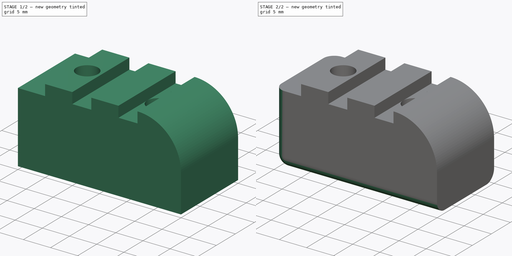
[diagram: build sequence overview — one tinted view per stage of 2, left to right]
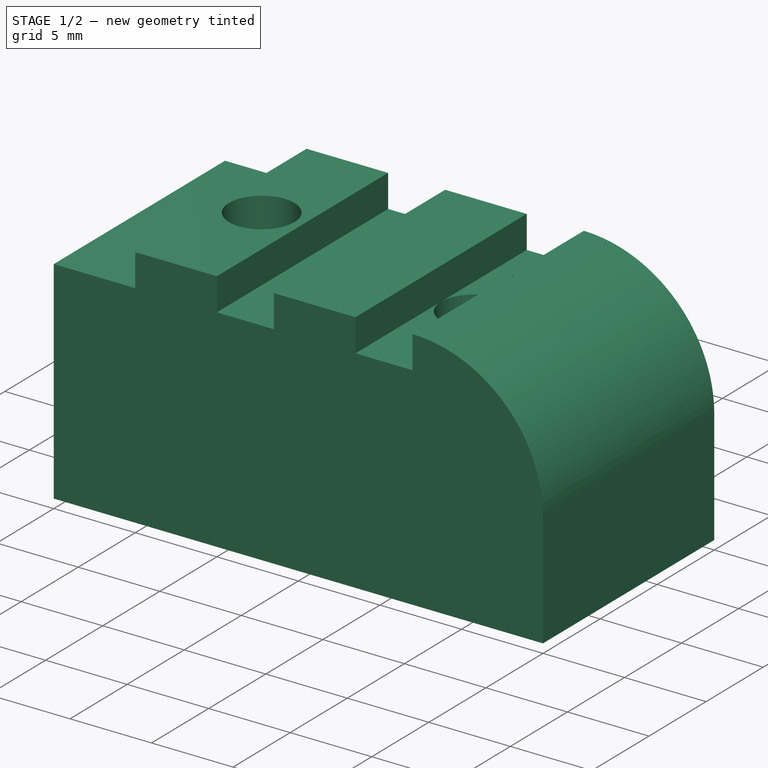
[diagram: stage 1 of 2 — iso view after this stage's code; geometry added in this stage tinted green]
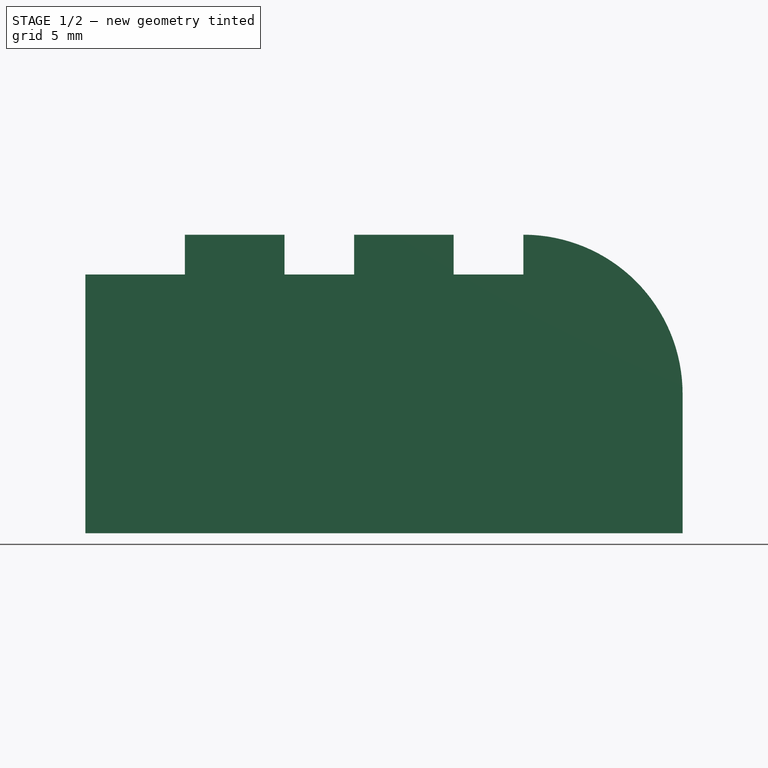
[diagram: stage 1 of 2 — front view after this stage's code; geometry added in this stage tinted green]
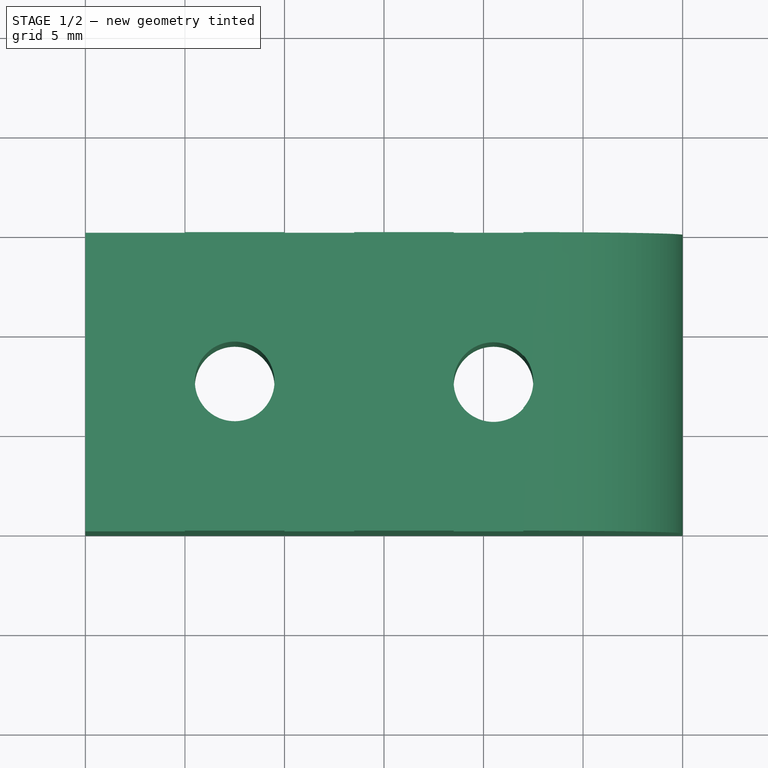
[diagram: stage 1 of 2 — top view after this stage's code; geometry added in this stage tinted green]
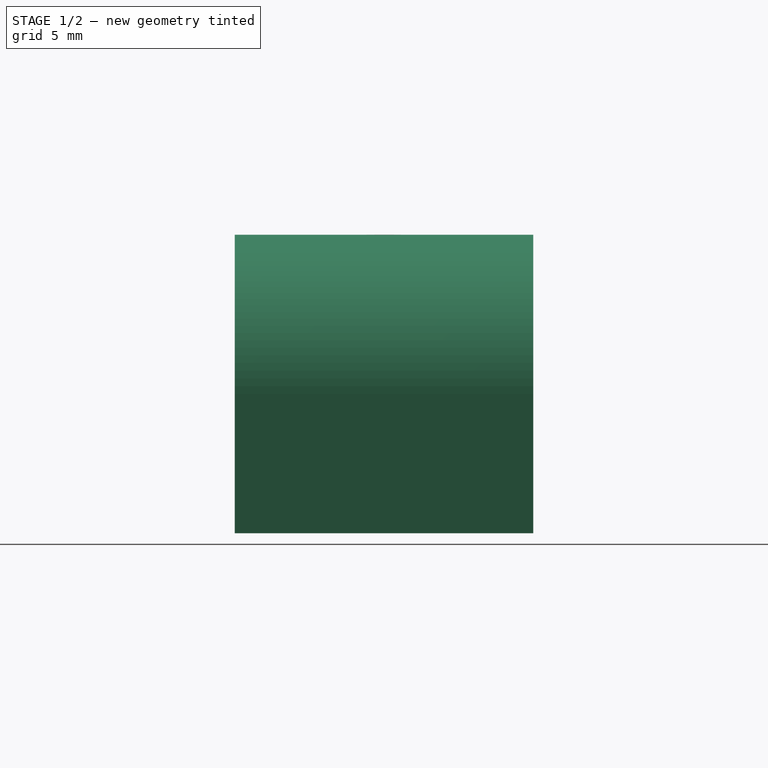
[diagram: stage 1 of 2 — right view after this stage's code; geometry added in this stage tinted green]
FCSTD DOCUMENT  (FreeCAD 0.18R4 (GitTag))
Label: CPU_hanger
License: All rights reserved
LicenseURL: http://en.wikipedia.org/wiki/All_rights_reserved
objects: Sketcher::SketchObject×2, PartDesign::Pad×1, PartDesign::Pocket×1, PartDesign::Chamfer×1, PartDesign::Fillet×1, PartDesign::Body×1
note: 9 computed .brp shape members not serialized (recipe doc carries the construction recipe); baked Part::Feature solids carry a one-line shape summary decoded from their .brp

FEATURE [Sketcher::SketchObject] Sketch
  MapMode = 5
  Placement = pos=(0,0,0) rot=(1,0,0;1.5708rad)
  Support = -> [XZ_Plane]
  sketch-geometry (14):
    g0: LineSegment StartX=0 StartY=0 StartZ=0 EndX=30 EndY=0 EndZ=0
    g1: LineSegment StartX=30 StartY=0 StartZ=0 EndX=30 EndY=7 EndZ=0
    g2: ArcOfCircle CenterX=22 CenterY=7 CenterZ=0 NormalX=0 NormalY=0 NormalZ=1 AngleXU=0 Radius=8 StartAngle=0 EndAngle=1.5708
    g3: LineSegment StartX=22 StartY=15 StartZ=0 EndX=22 EndY=13 EndZ=0
    g4: LineSegment StartX=22 StartY=13 StartZ=0 EndX=18.5 EndY=13 EndZ=0
    g5: LineSegment StartX=18.5 StartY=13 StartZ=0 EndX=18.5 EndY=15 EndZ=0
    g6: LineSegment StartX=18.5 StartY=15 StartZ=0 EndX=13.5 EndY=15 EndZ=0
    g7: LineSegment StartX=13.5 StartY=15 StartZ=0 EndX=13.5 EndY=13 EndZ=0
    g8: LineSegment StartX=13.5 StartY=13 StartZ=0 EndX=10 EndY=13 EndZ=0
    g9: LineSegment StartX=10 StartY=13 StartZ=0 EndX=10 EndY=15 EndZ=0
    g10: LineSegment StartX=10 StartY=15 StartZ=0 EndX=5 EndY=15 EndZ=0
    g11: LineSegment StartX=5 StartY=15 StartZ=0 EndX=5 EndY=13 EndZ=0
    g12: LineSegment StartX=5 StartY=13 StartZ=0 EndX=0 EndY=13 EndZ=0
    g13: LineSegment StartX=0 StartY=13 StartZ=0 EndX=0 EndY=0 EndZ=0
  constraints (42):
    c: Coincident(g1,g0)
    c: Coincident(g1,g2)
    c: Horizontal(g1,g2)
    c: Vertical(g2,g2)
    c: Vertical(g1)
    c: Horizontal(g0)
    c: Coincident(g0,g-1)
    c: Coincident(g3,g4)
    c: Coincident(g4,g5)
    c: Coincident(g5,g6)
    c: Coincident(g6,g7)
    c: Coincident(g7,g8)
    c: Coincident(g8,g9)
    c: Coincident(g9,g10)
    c: Coincident(g10,g11)
    c: Coincident(g11,g12)
    c: Coincident(g12,g13)
    c: Coincident(g13,g0)
    c: Coincident(g3,g2)
    c: Horizontal(g10,g9)
    c: Horizontal(g9,g6)
    c: Horizontal(g6,g5)
    c: Horizontal(g5,g2)
    c: Horizontal(g4,g3)
    c: Horizontal(g3,g7)
    c: Horizontal(g7,g8)
    c: Horizontal(g8,g11)
    c: Horizontal(g11,g12)
    c: Vertical(g11)
    c: Vertical(g9)
    c: Vertical(g7)
    c: Vertical(g5)
    c: Vertical(g3)
    c: Vertical(g12,g0)
    c: Equal(g6,g10)
    c: Equal(g8,g4)
    c: DistanceY(g0,g10) = 15
    c: DistanceY(g11,g10) = 2
    c: DistanceX(g0,g0) = 30
    c: DistanceX(g6,g6) = 5
    c: DistanceX(g12,g9) = 10
    c: DistanceX(g12,g2) = 22
FEATURE [PartDesign::Pad] Pad
  Length = 15
  Length2 = 100
  Placement = pos=(0,0,0) rot=(1,0,0;1.5708rad)
  Profile = -> Sketch
  Type = 0
FEATURE [Sketcher::SketchObject] Sketch001
  MapMode = 5
  Placement = pos=(0,0,0) rot=(1,0,0;3.14159rad)
  Support = -> [Pad]
  sketch-geometry (2):
    g0: Circle CenterX=7.5 CenterY=7.5 CenterZ=0 NormalX=0 NormalY=0 NormalZ=1 AngleXU=0 Radius=2
    g1: Circle CenterX=20.5 CenterY=7.5 CenterZ=0 NormalX=0 NormalY=0 NormalZ=1 AngleXU=0 Radius=2
  constraints (6):
    c: Equal(g1,g0)
    c: Radius(g1) = 2
    c: DistanceY(g-1,g0) = 7.5
    c: Horizontal(g1,g0)
    c: DistanceX(g-1,g0) = 7.5
    c: DistanceX(g0,g1) = 13
FEATURE [PartDesign::Pocket] Pocket
  BaseFeature = -> Pad
  Length = 15
  Length2 = 100
  Placement = pos=(0,0,0) rot=(1,0,0;1.5708rad)
  Profile = -> Sketch001
  Type = 0
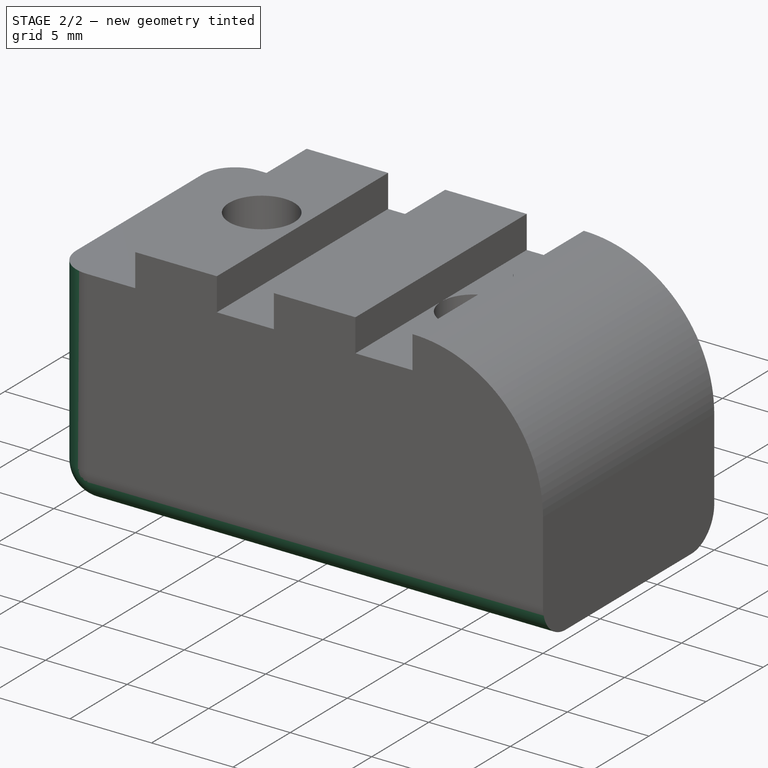
[diagram: stage 2 of 2 — iso view after this stage's code; geometry added in this stage tinted green]
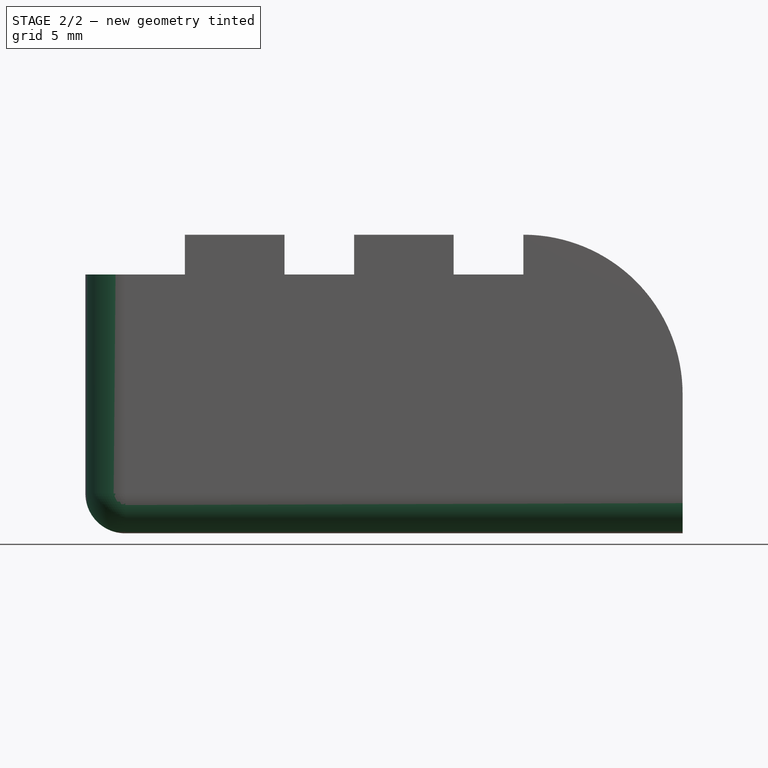
[diagram: stage 2 of 2 — front view after this stage's code; geometry added in this stage tinted green]
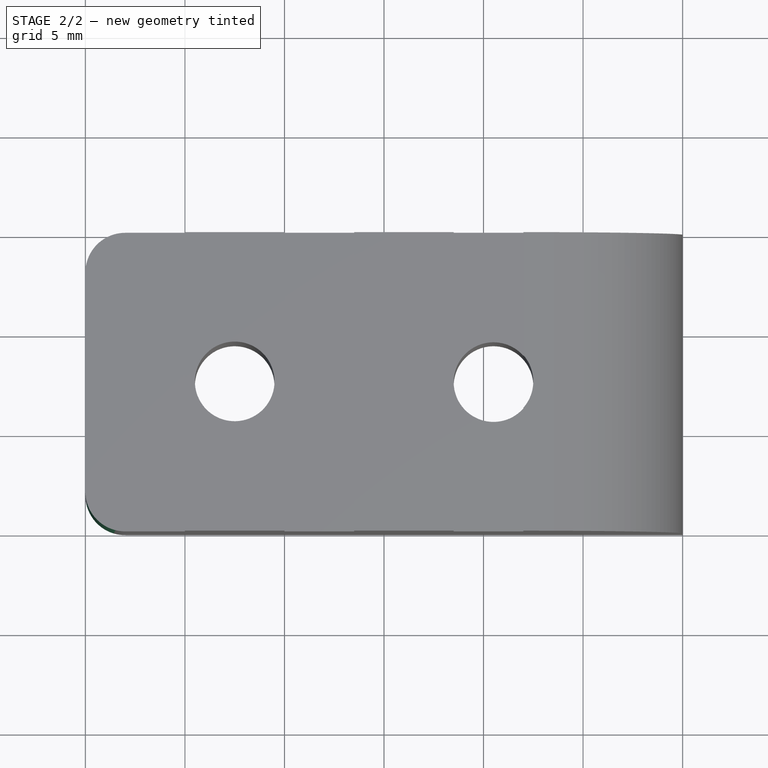
[diagram: stage 2 of 2 — top view after this stage's code; geometry added in this stage tinted green]
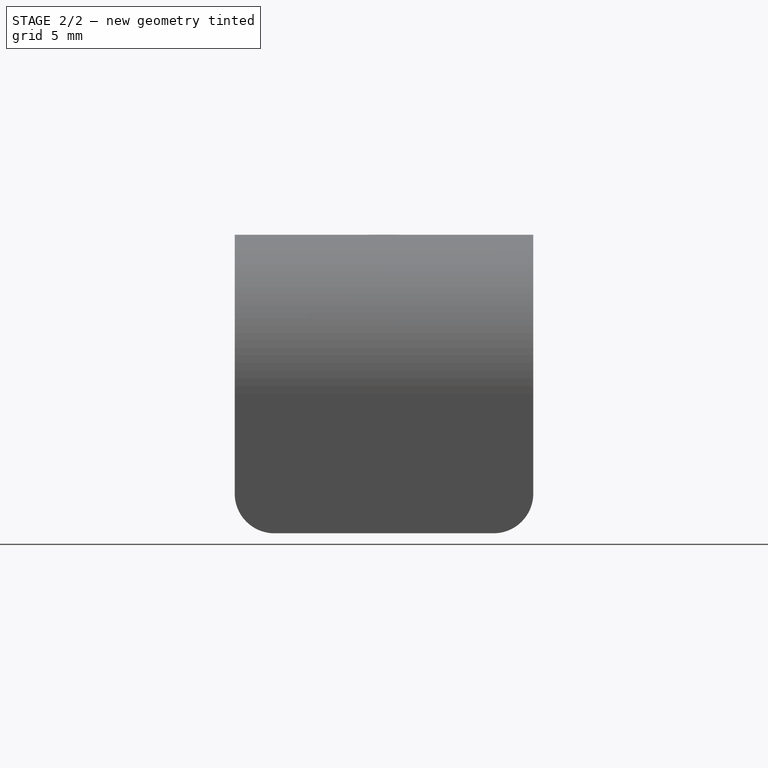
[diagram: stage 2 of 2 — right view after this stage's code; geometry added in this stage tinted green]
FEATURE [PartDesign::Chamfer] Chamfer
  Base = -> Pocket [Edge6,Edge5]
  BaseFeature = -> Pocket
  Placement = pos=(0,0,0) rot=(1,0,0;1.5708rad)
  Size = 1.5
FEATURE [PartDesign::Fillet] Fillet
  Base = -> Chamfer [Edge11,Edge10,Edge2,Edge4,Edge3]
  BaseFeature = -> Chamfer
  Placement = pos=(0,0,0) rot=(1,0,0;1.5708rad)
  Radius = 2
FEATURE [PartDesign::Body] Body
  Group = -> [Sketch,Pad,Sketch001,Pocket,Chamfer,Fillet]
  Origin = -> Origin
  Tip = -> Fillet
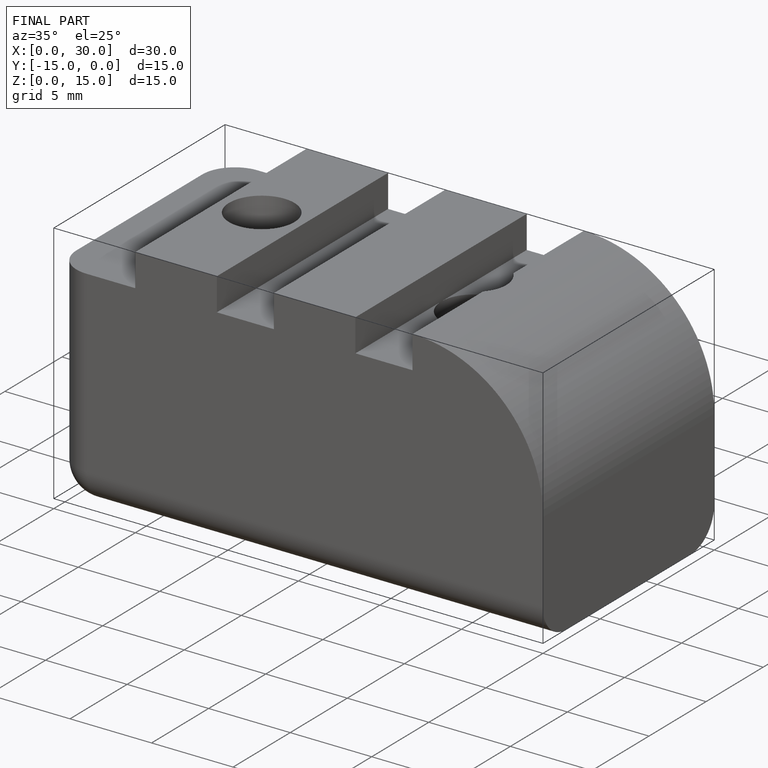
[diagram: finished part — iso view with bounding-box wireframe]
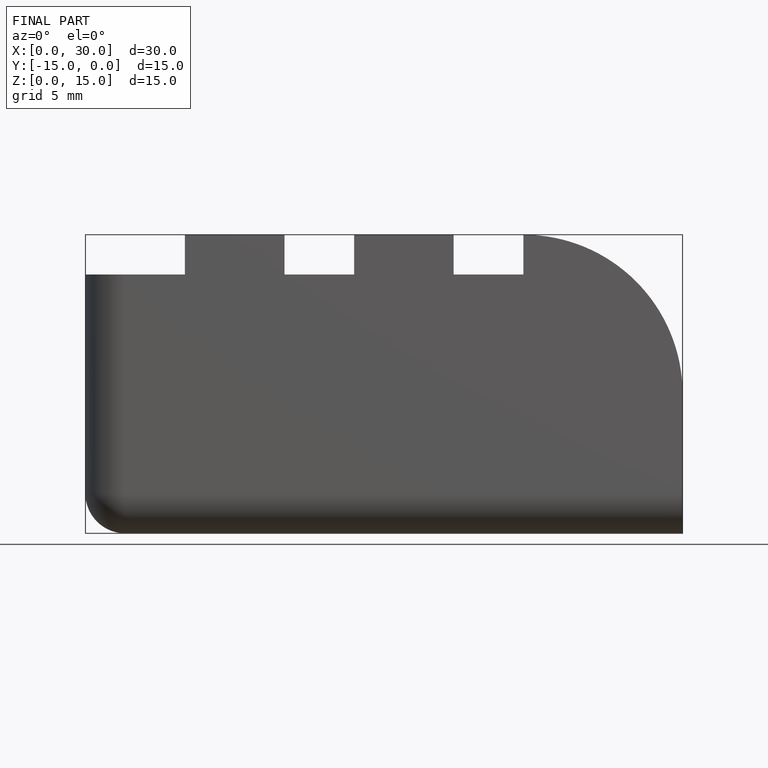
[diagram: finished part — front view with bounding-box wireframe]
